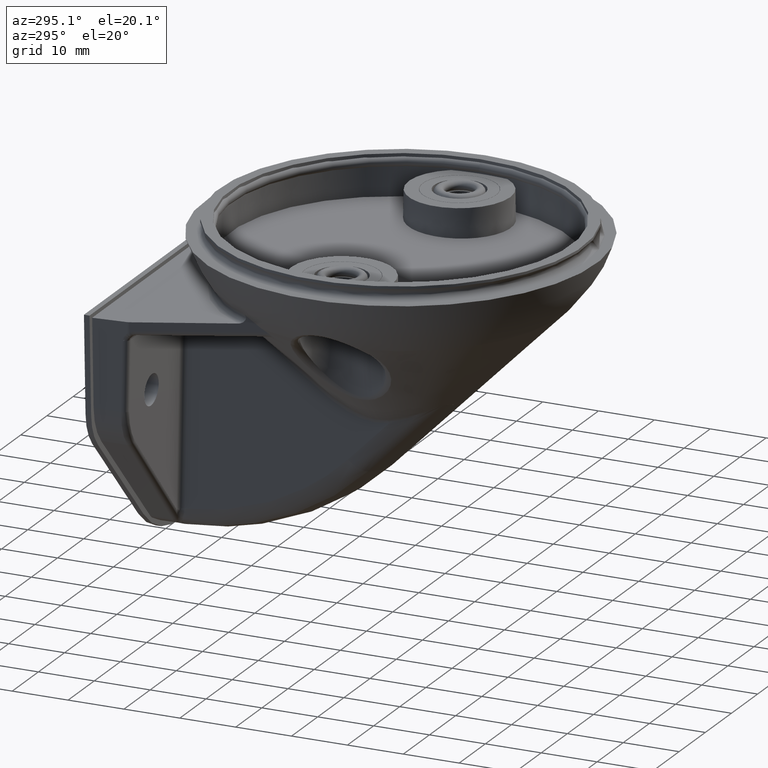
[diagram: clean part render]
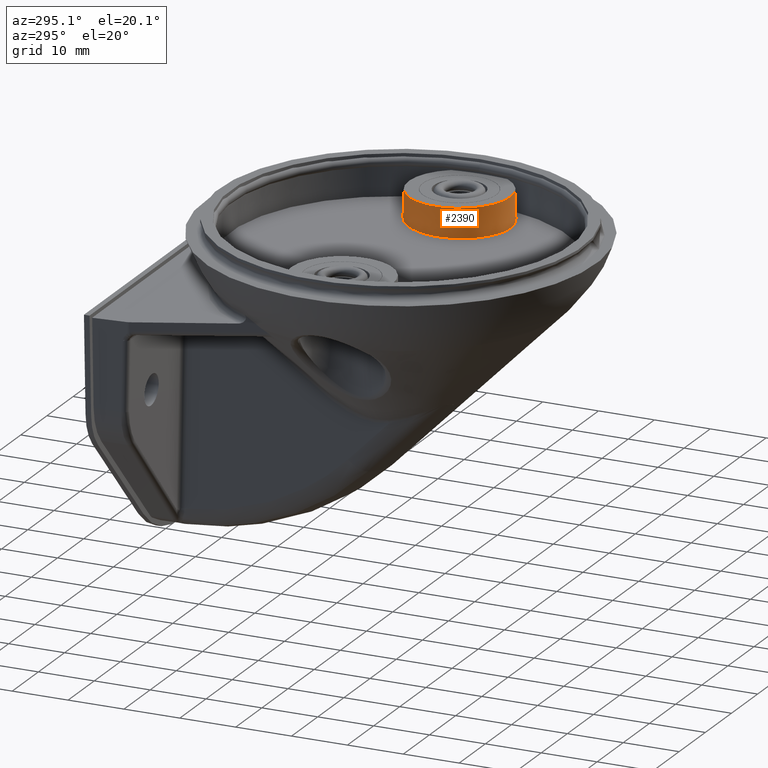
[diagram: same view with one face highlighted and labeled with its STEP entity id]
A machine part, auxiliary view. The second image highlights one B-rep face of the part: STEP entity #2390.
In plain terms, the highlighted conical surface has half-angle 1 deg.
Its self-contained STEP definition (entity closure, byte-faithful):
#96=CONICAL_SURFACE('',#2998,9.1,1.);
#132=ELLIPSE('',#2996,9.1673949665154,9.16599830242131);
#150=B_SPLINE_CURVE_WITH_KNOTS('',3,(#3996,#3997,#3998,#3999),.UNSPECIFIED.,
 .F.,.F.,(4,4),(0.,1.),.UNSPECIFIED.);
#153=B_SPLINE_CURVE_WITH_KNOTS('',3,(#4018,#4019,#4020,#4021),.UNSPECIFIED.,
 .F.,.F.,(4,4),(0.,1.),.UNSPECIFIED.);
#347=CIRCLE('',#2997,9.07643566234691);
#509=FACE_OUTER_BOUND('',#675,.T.);
#675=EDGE_LOOP('',(#1048,#1049,#1050,#1051));
#1048=ORIENTED_EDGE('',*,*,#1798,.T.);
#1049=ORIENTED_EDGE('',*,*,#1721,.T.);
#1050=ORIENTED_EDGE('',*,*,#1799,.F.);
#1051=ORIENTED_EDGE('',*,*,#1727,.T.);
#1721=EDGE_CURVE('',#2692,#2693,#150,.T.);
#1727=EDGE_CURVE('',#2699,#2698,#153,.T.);
#1798=EDGE_CURVE('',#2698,#2692,#132,.T.);
#1799=EDGE_CURVE('',#2699,#2693,#347,.T.);
#2390=ADVANCED_FACE('',(#509),#96,.T.);
#2692=VERTEX_POINT('',#4000);
#2693=VERTEX_POINT('',#4001);
#2698=VERTEX_POINT('',#4017);
#2699=VERTEX_POINT('',#4022);
#2996=AXIS2_PLACEMENT_3D('',#4219,#3425,#3426);
#2997=AXIS2_PLACEMENT_3D('',#4220,#3427,#3428);
#2998=AXIS2_PLACEMENT_3D('',#4221,#3429,#3430);
#3425=DIRECTION('',(3.91506940732212E-015,-0.0174524064372835,0.999847695156391));
#3426=DIRECTION('',(2.24294176127245E-013,-0.999847695156391,-0.0174524064372835));
#3427=DIRECTION('',(0.,0.,1.));
#3428=DIRECTION('',(-1.,0.,0.));
#3429=DIRECTION('',(0.,0.,-1.));
#3430=DIRECTION('',(1.,0.,1.95976565751132E-015));
#3996=CARTESIAN_POINT('',(29.8720791605621,-7.50233556936096,21.3581198281917));
#3997=CARTESIAN_POINT('',(29.9255165268898,-7.37888153447759,23.1005225540909));
#3998=CARTESIAN_POINT('',(29.9789439220291,-7.25075808413604,24.8426001549498));
#3999=CARTESIAN_POINT('',(30.0323584458033,-7.11681955410177,26.5842580663064));
#4000=CARTESIAN_POINT('',(29.8720791605621,-7.50233556936095,21.3581198281917));
#4001=CARTESIAN_POINT('',(30.0323584458033,-7.11681955410177,26.5842580663064));
#4017=CARTESIAN_POINT('',(29.877906519427,3.38330001617951,21.5481293041222));
#4018=CARTESIAN_POINT('',(30.0323584458033,3.01126547802329,26.5842580663064));
#4019=CARTESIAN_POINT('',(29.9808855861305,3.14033522673797,24.9059109252098));
#4020=CARTESIAN_POINT('',(29.9294007340989,3.26400280791213,23.2271727558892));
#4021=CARTESIAN_POINT('',(29.877906519427,3.38330001617951,21.5481293041222));
#4022=CARTESIAN_POINT('',(30.0323584458033,3.01126547802329,26.5842580663064));
#4219=CARTESIAN_POINT('',(22.4999512788856,-2.05556972803884,21.4531934796008));
#4220=CARTESIAN_POINT('',(22.4999512788856,-2.05277703803919,26.5842580663064));
#4221=CARTESIAN_POINT('',(22.4999512788856,-2.05277703803919,25.2342580663064));